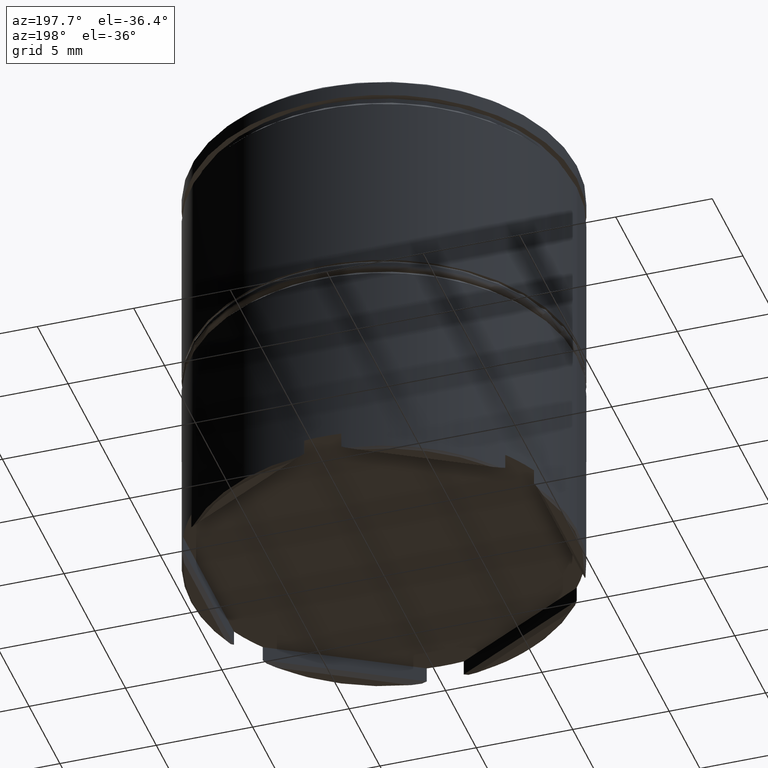
[diagram: clean part render]
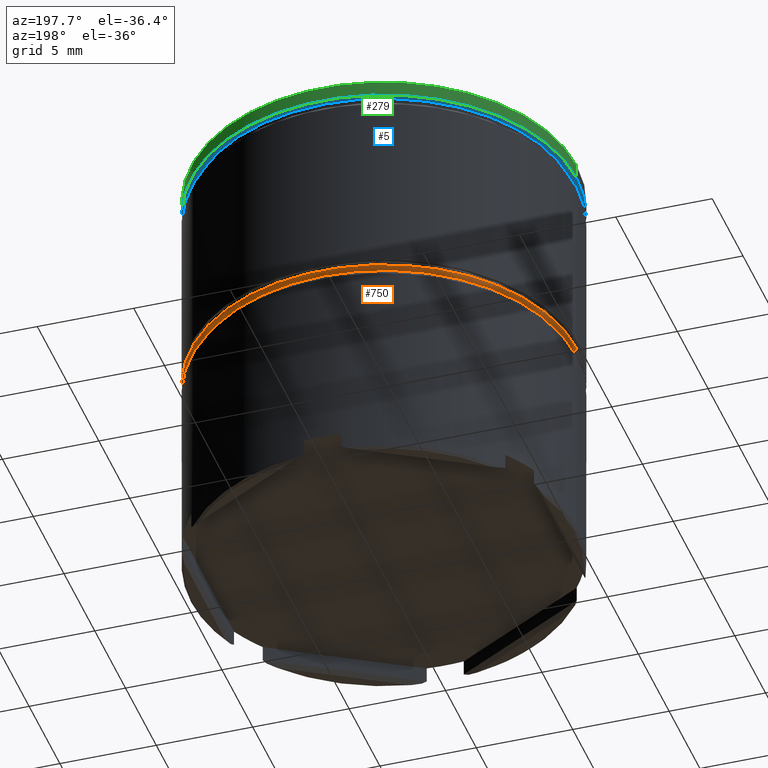
[diagram: same view with three faces highlighted in distinct colors, each labeled with its STEP entity id]
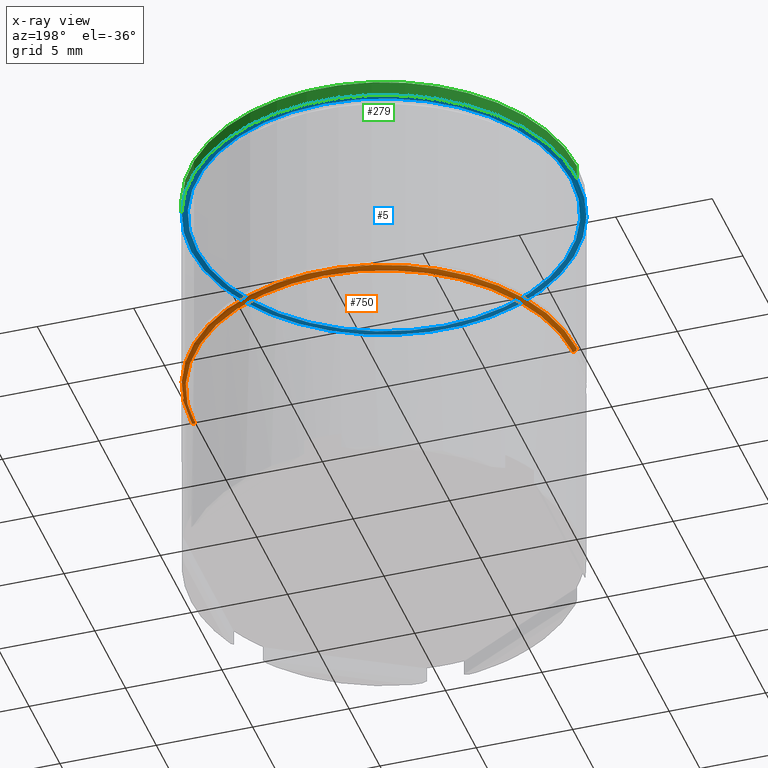
[diagram: x-ray of the same camera — body ghosted, the three highlighted faces saturated]
A machine part, auxiliary view with three faces highlighted in distinct colors.
The next image is the same camera in x-ray (body ghosted, the three faces saturated) — at least one of them is partly hidden behind the body in this view.
Their STEP definitions:

[orange] entity #750 — the highlighted toroidal blend (fillet) surface has major radius 9.8 mm and minor (blend) radius 0.2 mm.
#18 = CARTESIAN_POINT ( 'NONE',  ( -9.799999999999998934, 1.200153863164406148E-15, -11.29999999999999716 ) ) ;
#68 = ORIENTED_EDGE ( 'NONE', *, *, #454, .F. ) ;
#158 = DIRECTION ( 'NONE',  ( -1.000000000000000000, 1.224646799147353207E-16, 0.000000000000000000 ) ) ;
#161 = CARTESIAN_POINT ( 'NONE',  ( 0.000000000000000000, 0.000000000000000000, -11.29999999999999716 ) ) ;
#232 = EDGE_LOOP ( 'NONE', ( #1217, #1499, #1113, #68 ) ) ;
#282 = CIRCLE ( 'NONE', #1294, 0.2000000000000005107 ) ;
#319 = EDGE_CURVE ( 'NONE', #370, #320, #654, .T. ) ;
#320 = VERTEX_POINT ( 'NONE', #532 ) ;
#321 = CARTESIAN_POINT ( 'NONE',  ( 0.000000000000000000, 0.000000000000000000, -11.49999999999999822 ) ) ;
#370 = VERTEX_POINT ( 'NONE', #834 ) ;
#400 = DIRECTION ( 'NONE',  ( -0.000000000000000000, -0.000000000000000000, -1.000000000000000000 ) ) ;
#402 = CARTESIAN_POINT ( 'NONE',  ( 9.799999999999998934, 0.000000000000000000, -11.29999999999999716 ) ) ;
#414 = AXIS2_PLACEMENT_3D ( 'NONE', #321, #400, #1331 ) ;
#433 = DIRECTION ( 'NONE',  ( 0.000000000000000000, 0.000000000000000000, -1.000000000000000000 ) ) ;
#438 = AXIS2_PLACEMENT_3D ( 'NONE', #18, #1287, #158 ) ;
#454 = EDGE_CURVE ( 'NONE', #320, #519, #282, .T. ) ;
#478 = CARTESIAN_POINT ( 'NONE',  ( 10.00000000000000000, 0.000000000000000000, -11.29999999999999716 ) ) ;
#519 = VERTEX_POINT ( 'NONE', #478 ) ;
#527 = DIRECTION ( 'NONE',  ( 1.000000000000000000, 0.000000000000000000, 0.000000000000000000 ) ) ;
#532 = CARTESIAN_POINT ( 'NONE',  ( 9.799999999999998934, 0.000000000000000000, -11.49999999999999822 ) ) ;
#609 = VERTEX_POINT ( 'NONE', #678 ) ;
#623 = AXIS2_PLACEMENT_3D ( 'NONE', #1131, #1516, #527 ) ;
#654 = CIRCLE ( 'NONE', #414, 9.799999999999998934 ) ;
#678 = CARTESIAN_POINT ( 'NONE',  ( -10.00000000000000000, 1.224646799147353059E-15, -11.29999999999999716 ) ) ;
#696 = DIRECTION ( 'NONE',  ( 1.000000000000000000, 0.000000000000000000, 0.000000000000000000 ) ) ;
#732 = CIRCLE ( 'NONE', #1157, 10.00000000000000000 ) ;
#750 = ADVANCED_FACE ( 'NONE', ( #1257 ), #1632, .T. ) ;
#834 = CARTESIAN_POINT ( 'NONE',  ( -9.799999999999998934, 1.212400331155879505E-15, -11.49999999999999822 ) ) ;
#967 = EDGE_CURVE ( 'NONE', #519, #609, #732, .T. ) ;
#982 = CIRCLE ( 'NONE', #438, 0.2000000000000005107 ) ;
#1024 = EDGE_CURVE ( 'NONE', #370, #609, #982, .T. ) ;
#1113 = ORIENTED_EDGE ( 'NONE', *, *, #967, .F. ) ;
#1131 = CARTESIAN_POINT ( 'NONE',  ( 0.000000000000000000, 0.000000000000000000, -11.29999999999999716 ) ) ;
#1157 = AXIS2_PLACEMENT_3D ( 'NONE', #161, #1201, #696 ) ;
#1201 = DIRECTION ( 'NONE',  ( 0.000000000000000000, 0.000000000000000000, 1.000000000000000000 ) ) ;
#1217 = ORIENTED_EDGE ( 'NONE', *, *, #319, .F. ) ;
#1257 = FACE_OUTER_BOUND ( 'NONE', #232, .T. ) ;
#1287 = DIRECTION ( 'NONE',  ( 1.224646799147353207E-16, 1.000000000000000000, -0.000000000000000000 ) ) ;
#1294 = AXIS2_PLACEMENT_3D ( 'NONE', #402, #1431, #433 ) ;
#1331 = DIRECTION ( 'NONE',  ( 1.000000000000000000, 0.000000000000000000, 0.000000000000000000 ) ) ;
#1431 = DIRECTION ( 'NONE',  ( 0.000000000000000000, -1.000000000000000000, 0.000000000000000000 ) ) ;
#1499 = ORIENTED_EDGE ( 'NONE', *, *, #1024, .T. ) ;
#1516 = DIRECTION ( 'NONE',  ( 0.000000000000000000, 0.000000000000000000, 1.000000000000000000 ) ) ;
#1632 = TOROIDAL_SURFACE ( 'NONE', #623, 9.799999999999998934, 0.2000000000000000111 ) ;

[blue] entity #5 — the highlighted planar face has unit normal (0, 0, -1).
#5 = ADVANCED_FACE ( 'NONE', ( #353, #981 ), #1362, .T. ) ;
#10 = ORIENTED_EDGE ( 'NONE', *, *, #1069, .F. ) ;
#51 = CIRCLE ( 'NONE', #985, 9.700000000000001066 ) ;
#104 = VERTEX_POINT ( 'NONE', #137 ) ;
#107 = DIRECTION ( 'NONE',  ( -1.000000000000000000, 0.000000000000000000, -0.000000000000000000 ) ) ;
#127 = AXIS2_PLACEMENT_3D ( 'NONE', #740, #1253, #500 ) ;
#137 = CARTESIAN_POINT ( 'NONE',  ( -10.00000000000000000, 1.224646799147353256E-15, -0.8749999999999998890 ) ) ;
#207 = CIRCLE ( 'NONE', #1581, 10.00000000000000000 ) ;
#251 = ORIENTED_EDGE ( 'NONE', *, *, #1495, .T. ) ;
#312 = DIRECTION ( 'NONE',  ( 1.000000000000000000, 0.000000000000000000, 0.000000000000000000 ) ) ;
#325 = EDGE_CURVE ( 'NONE', #741, #578, #627, .T. ) ;
#353 = FACE_BOUND ( 'NONE', #375, .T. ) ;
#375 = EDGE_LOOP ( 'NONE', ( #251, #846 ) ) ;
#407 = DIRECTION ( 'NONE',  ( 1.000000000000000000, 0.000000000000000000, 0.000000000000000000 ) ) ;
#500 = DIRECTION ( 'NONE',  ( 1.000000000000000000, 0.000000000000000000, 0.000000000000000000 ) ) ;
#505 = ORIENTED_EDGE ( 'NONE', *, *, #1368, .F. ) ;
#547 = EDGE_LOOP ( 'NONE', ( #10, #505 ) ) ;
#578 = VERTEX_POINT ( 'NONE', #580 ) ;
#580 = CARTESIAN_POINT ( 'NONE',  ( 9.700000000000001066, 0.000000000000000000, -0.8749999999999998890 ) ) ;
#627 = CIRCLE ( 'NONE', #842, 9.700000000000001066 ) ;
#740 = CARTESIAN_POINT ( 'NONE',  ( 0.000000000000000000, 0.000000000000000000, -0.8749999999999998890 ) ) ;
#741 = VERTEX_POINT ( 'NONE', #1142 ) ;
#813 = DIRECTION ( 'NONE',  ( -0.000000000000000000, -0.000000000000000000, 1.000000000000000000 ) ) ;
#841 = CIRCLE ( 'NONE', #127, 10.00000000000000000 ) ;
#842 = AXIS2_PLACEMENT_3D ( 'NONE', #1170, #1553, #407 ) ;
#846 = ORIENTED_EDGE ( 'NONE', *, *, #325, .T. ) ;
#981 = FACE_OUTER_BOUND ( 'NONE', #547, .T. ) ;
#985 = AXIS2_PLACEMENT_3D ( 'NONE', #1289, #1052, #1146 ) ;
#1052 = DIRECTION ( 'NONE',  ( -0.000000000000000000, -0.000000000000000000, 1.000000000000000000 ) ) ;
#1069 = EDGE_CURVE ( 'NONE', #1228, #104, #207, .T. ) ;
#1142 = CARTESIAN_POINT ( 'NONE',  ( -9.700000000000001066, 1.187907395172932594E-15, -0.8749999999999998890 ) ) ;
#1146 = DIRECTION ( 'NONE',  ( 1.000000000000000000, 0.000000000000000000, 0.000000000000000000 ) ) ;
#1170 = CARTESIAN_POINT ( 'NONE',  ( 0.000000000000000000, 0.000000000000000000, -0.8749999999999998890 ) ) ;
#1228 = VERTEX_POINT ( 'NONE', #1624 ) ;
#1241 = CARTESIAN_POINT ( 'NONE',  ( 0.000000000000000000, 10.00000000000000000, -0.8749999999999998890 ) ) ;
#1253 = DIRECTION ( 'NONE',  ( -0.000000000000000000, -0.000000000000000000, 1.000000000000000000 ) ) ;
#1289 = CARTESIAN_POINT ( 'NONE',  ( 0.000000000000000000, 0.000000000000000000, -0.8749999999999998890 ) ) ;
#1339 = CARTESIAN_POINT ( 'NONE',  ( 0.000000000000000000, 0.000000000000000000, -0.8749999999999998890 ) ) ;
#1362 = PLANE ( 'NONE',  #1423 ) ;
#1368 = EDGE_CURVE ( 'NONE', #104, #1228, #841, .T. ) ;
#1423 = AXIS2_PLACEMENT_3D ( 'NONE', #1241, #1478, #107 ) ;
#1478 = DIRECTION ( 'NONE',  ( 0.000000000000000000, 0.000000000000000000, -1.000000000000000000 ) ) ;
#1495 = EDGE_CURVE ( 'NONE', #578, #741, #51, .T. ) ;
#1553 = DIRECTION ( 'NONE',  ( -0.000000000000000000, -0.000000000000000000, 1.000000000000000000 ) ) ;
#1581 = AXIS2_PLACEMENT_3D ( 'NONE', #1339, #813, #312 ) ;
#1624 = CARTESIAN_POINT ( 'NONE',  ( 10.00000000000000000, 0.000000000000000000, -0.8749999999999998890 ) ) ;

[green] entity #279 — the highlighted cylindrical surface (partial cylindrical patch) has radius 10 mm, axis along (-0, -0, 1).
#61 = DIRECTION ( 'NONE',  ( -0.000000000000000000, -0.000000000000000000, 1.000000000000000000 ) ) ;
#67 = DIRECTION ( 'NONE',  ( -0.000000000000000000, -0.000000000000000000, 1.000000000000000000 ) ) ;
#104 = VERTEX_POINT ( 'NONE', #137 ) ;
#137 = CARTESIAN_POINT ( 'NONE',  ( -10.00000000000000000, 1.224646799147353256E-15, -0.8749999999999998890 ) ) ;
#191 = LINE ( 'NONE', #1198, #388 ) ;
#207 = CIRCLE ( 'NONE', #1581, 10.00000000000000000 ) ;
#268 = CARTESIAN_POINT ( 'NONE',  ( 0.000000000000000000, 0.000000000000000000, -0.1000000000000011297 ) ) ;
#279 = ADVANCED_FACE ( 'NONE', ( #538 ), #1312, .T. ) ;
#312 = DIRECTION ( 'NONE',  ( 1.000000000000000000, 0.000000000000000000, 0.000000000000000000 ) ) ;
#341 = VECTOR ( 'NONE', #507, 1000.000000000000000 ) ;
#388 = VECTOR ( 'NONE', #67, 1000.000000000000000 ) ;
#420 = DIRECTION ( 'NONE',  ( 1.000000000000000000, 0.000000000000000000, 0.000000000000000000 ) ) ;
#507 = DIRECTION ( 'NONE',  ( -0.000000000000000000, -0.000000000000000000, 1.000000000000000000 ) ) ;
#538 = FACE_OUTER_BOUND ( 'NONE', #1263, .T. ) ;
#600 = AXIS2_PLACEMENT_3D ( 'NONE', #268, #611, #420 ) ;
#611 = DIRECTION ( 'NONE',  ( 0.000000000000000000, 0.000000000000000000, -1.000000000000000000 ) ) ;
#644 = ORIENTED_EDGE ( 'NONE', *, *, #791, .T. ) ;
#791 = EDGE_CURVE ( 'NONE', #1100, #1466, #1325, .T. ) ;
#813 = DIRECTION ( 'NONE',  ( -0.000000000000000000, -0.000000000000000000, 1.000000000000000000 ) ) ;
#1027 = ORIENTED_EDGE ( 'NONE', *, *, #1458, .F. ) ;
#1031 = CARTESIAN_POINT ( 'NONE',  ( -10.00000000000000000, 1.224646799147353256E-15, 0.000000000000000000 ) ) ;
#1069 = EDGE_CURVE ( 'NONE', #1228, #104, #207, .T. ) ;
#1079 = CARTESIAN_POINT ( 'NONE',  ( 10.00000000000000000, 0.000000000000000000, -0.1000000000000011297 ) ) ;
#1100 = VERTEX_POINT ( 'NONE', #1597 ) ;
#1198 = CARTESIAN_POINT ( 'NONE',  ( 10.00000000000000000, 0.000000000000000000, 0.000000000000000000 ) ) ;
#1207 = ORIENTED_EDGE ( 'NONE', *, *, #1069, .T. ) ;
#1228 = VERTEX_POINT ( 'NONE', #1624 ) ;
#1238 = EDGE_CURVE ( 'NONE', #104, #1100, #1284, .T. ) ;
#1263 = EDGE_LOOP ( 'NONE', ( #1207, #1386, #644, #1027 ) ) ;
#1284 = LINE ( 'NONE', #1031, #341 ) ;
#1312 = CYLINDRICAL_SURFACE ( 'NONE', #1636, 10.00000000000000000 ) ;
#1323 = CARTESIAN_POINT ( 'NONE',  ( 0.000000000000000000, 0.000000000000000000, 0.000000000000000000 ) ) ;
#1325 = CIRCLE ( 'NONE', #600, 10.00000000000000000 ) ;
#1339 = CARTESIAN_POINT ( 'NONE',  ( 0.000000000000000000, 0.000000000000000000, -0.8749999999999998890 ) ) ;
#1386 = ORIENTED_EDGE ( 'NONE', *, *, #1238, .T. ) ;
#1419 = DIRECTION ( 'NONE',  ( 1.000000000000000000, 0.000000000000000000, 0.000000000000000000 ) ) ;
#1458 = EDGE_CURVE ( 'NONE', #1228, #1466, #191, .T. ) ;
#1466 = VERTEX_POINT ( 'NONE', #1079 ) ;
#1581 = AXIS2_PLACEMENT_3D ( 'NONE', #1339, #813, #312 ) ;
#1597 = CARTESIAN_POINT ( 'NONE',  ( -10.00000000000000000, 1.224646799147353256E-15, -0.1000000000000011297 ) ) ;
#1624 = CARTESIAN_POINT ( 'NONE',  ( 10.00000000000000000, 0.000000000000000000, -0.8749999999999998890 ) ) ;
#1636 = AXIS2_PLACEMENT_3D ( 'NONE', #1323, #61, #1419 ) ;